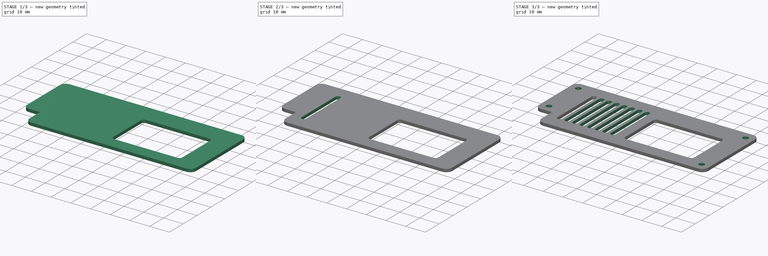
[diagram: build sequence overview — one tinted view per stage of 3, left to right]
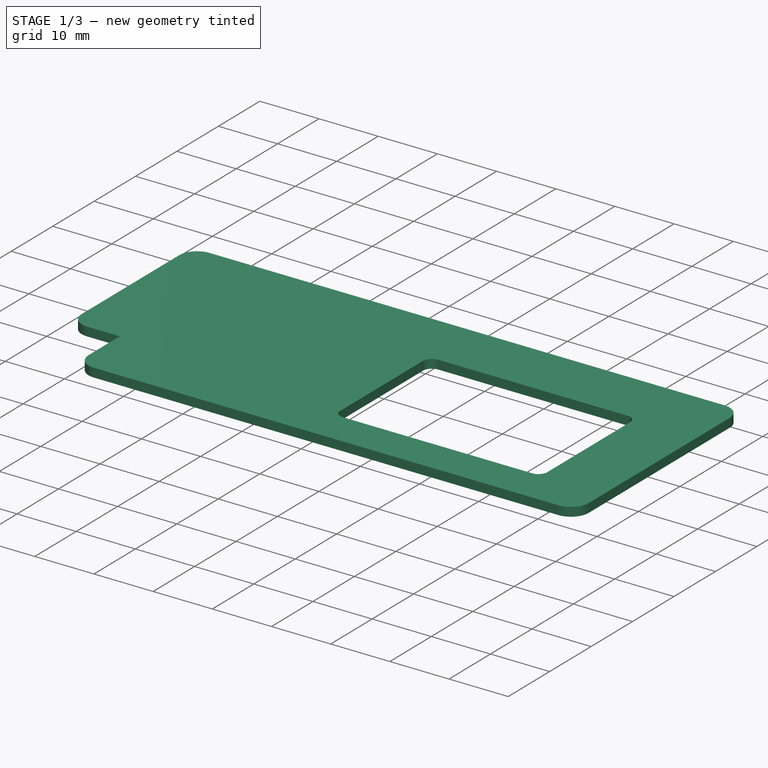
[diagram: stage 1 of 3 — iso view after this stage's code; geometry added in this stage tinted green]
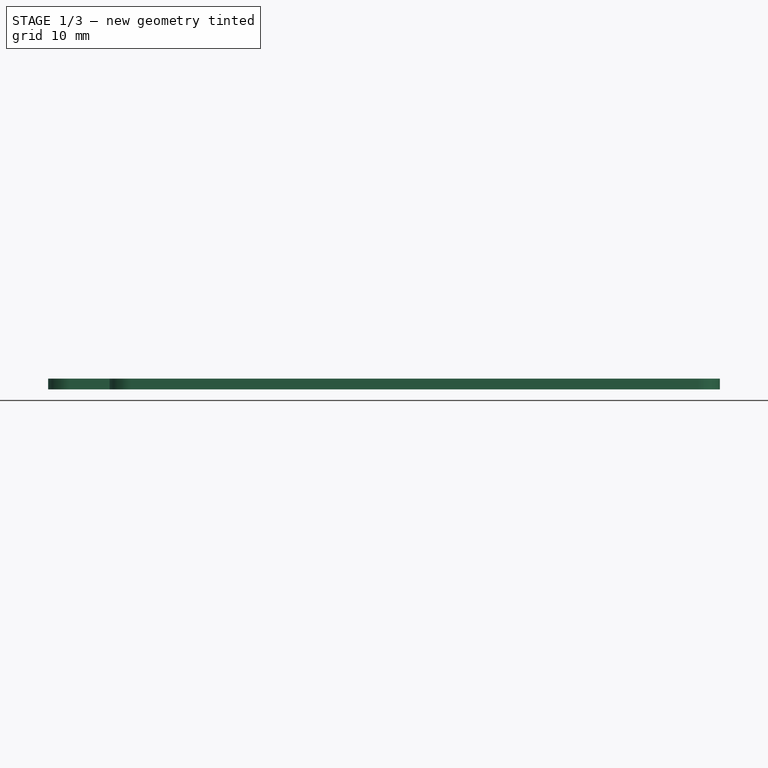
[diagram: stage 1 of 3 — front view after this stage's code; geometry added in this stage tinted green]
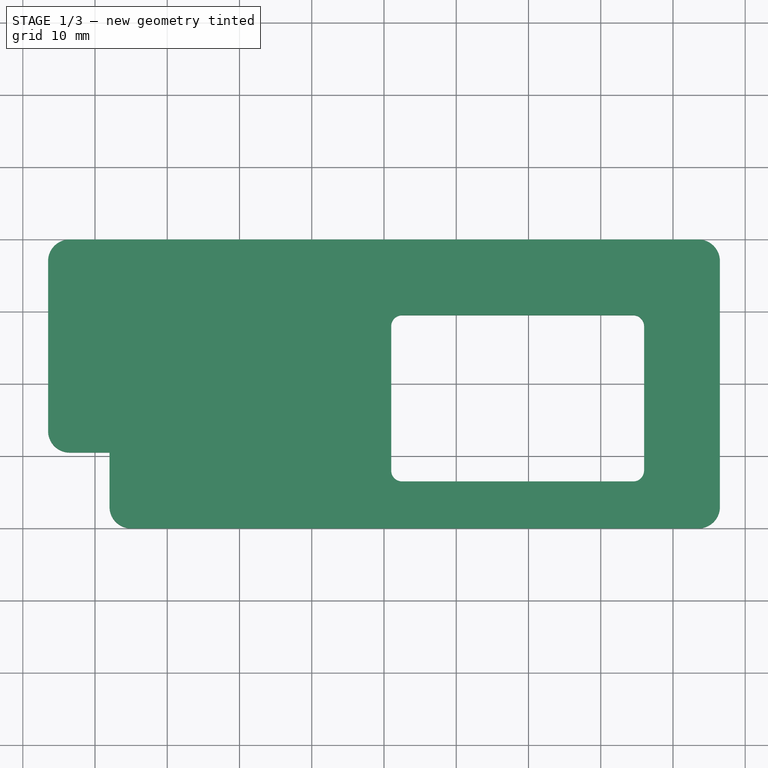
[diagram: stage 1 of 3 — top view after this stage's code; geometry added in this stage tinted green]
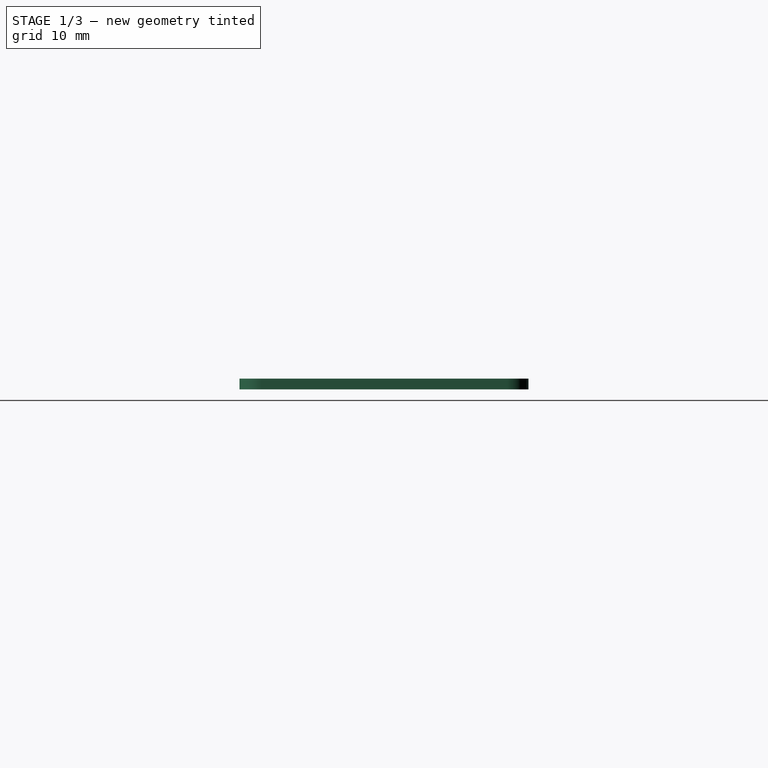
[diagram: stage 1 of 3 — right view after this stage's code; geometry added in this stage tinted green]
FCSTD DOCUMENT  (FreeCAD 0.20R29410 (Git))
Label: Full-Enclosure-TOP
License: All rights reserved
LicenseURL: http://en.wikipedia.org/wiki/All_rights_reserved
objects: Sketcher::SketchObject×4, PartDesign::Pocket×3, PartDesign::Pad×1, PartDesign::LinearPattern×1, PartDesign::Body×1
note: 14 computed .brp shape members not serialized (recipe doc carries the construction recipe); baked Part::Feature solids carry a one-line shape summary decoded from their .brp

FEATURE [Sketcher::SketchObject] Sketch
  FullyConstrained = true
  MapMode = 5
  Support = -> [XY_Plane]
  sketch-geometry (14):
    g0: LineSegment StartX=-43.5 StartY=20 StartZ=0 EndX=43.5 EndY=20 EndZ=0
    g1: LineSegment StartX=46.5 StartY=17 StartZ=0 EndX=46.5 EndY=-17 EndZ=0
    g2: LineSegment StartX=43.5 StartY=-20 StartZ=0 EndX=-35 EndY=-20 EndZ=0
    g3: ArcOfCircle CenterX=-43.5 CenterY=17 CenterZ=0 NormalX=0 NormalY=0 NormalZ=1 AngleXU=0 Radius=3 StartAngle=1.5708 EndAngle=3.14159
    g4: ArcOfCircle CenterX=43.5 CenterY=17 CenterZ=0 NormalX=0 NormalY=0 NormalZ=1 AngleXU=0 Radius=3 StartAngle=3e-16 EndAngle=1.5708
    g5: GeomPoint X=46.5 Y=20 Z=0
    g6: ArcOfCircle CenterX=-35 CenterY=-17 CenterZ=0 NormalX=0 NormalY=0 NormalZ=1 AngleXU=0 Radius=3 StartAngle=3.14159 EndAngle=4.71239
    g7: ArcOfCircle CenterX=43.5 CenterY=-17 CenterZ=0 NormalX=0 NormalY=0 NormalZ=1 AngleXU=0 Radius=3 StartAngle=4.71239 EndAngle=6.28319
    g8: GeomPoint X=46.5 Y=-20 Z=0
    g9: LineSegment StartX=-46.5 StartY=17 StartZ=0 EndX=-46.5 EndY=-6.5 EndZ=0
    g10: LineSegment StartX=-43.5 StartY=-9.5 StartZ=0 EndX=-38 EndY=-9.5 EndZ=0
    g11: LineSegment StartX=-38 StartY=-9.5 StartZ=0 EndX=-38 EndY=-17 EndZ=0
    g12: ArcOfCircle CenterX=-43.5 CenterY=-6.5 CenterZ=0 NormalX=0 NormalY=0 NormalZ=1 AngleXU=0 Radius=3 StartAngle=3.14159 EndAngle=4.71239
    g13: GeomPoint X=-46.5 Y=-9.5 Z=0
  constraints (34):
    c: Horizontal(g0)
    c: Horizontal(g2)
    c: Vertical(g1)
    c: Tangent(g0,g3) = 1.5708
    c: PointOnObject(g5,g0)
    c: PointOnObject(g5,g1)
    c: Tangent(g0,g4) = 1.5708
    c: Tangent(g1,g4) = 1.5708
    c: Tangent(g2,g6) = 1.5708
    c: PointOnObject(g8,g1)
    c: PointOnObject(g8,g2)
    c: Tangent(g1,g7) = 1.5708
    c: Tangent(g2,g7) = 1.5708
    c: Equal(g7,g4)
    c: Equal(g4,g3)
    c: Equal(g3,g6)
    c: Symmetric(g7,g3,g-1)
    c: Tangent(g3,g9) = -1.5708
    c: Coincident(g10,g11)
    c: Coincident(g11,g6)
    c: Horizontal(g3,g3)
    c: Horizontal(g10)
    c: Vertical(g11)
    c: PointOnObject(g13,g9)
    c: PointOnObject(g13,g10)
    c: Tangent(g9,g12) = -1.5708
    c: Tangent(g10,g12) = -1.5708
    c: Equal(g12,g3)
    c: Horizontal(g6,g6)
    c: DistanceY(g2,g0) = 40
    c: DistanceX(g13,g8) = 93
    c: Radius(g6) = 3
    c: DistanceX(g13,g10) = 8.5
    c: DistanceY(g13,g0) = 29.5
FEATURE [PartDesign::Pad] Pad
  Direction = (0,0,1)
  Length = 1.5
  Length2 = 10
  Profile = -> Sketch
  ReferenceAxis = -> Sketch [N_Axis]
  Type = 0
FEATURE [Sketcher::SketchObject] Sketch001
  ExternalGeometry = -> [Pad]
  FullyConstrained = true
  MapMode = 5
  Placement = pos=(0,0,1.5) rot=(0,0,1;0rad)
  Support = -> [Pad]
  sketch-geometry (12):
    g0: LineSegment StartX=2.5 StartY=9.5 StartZ=0 EndX=34.5 EndY=9.5 EndZ=0
    g1: LineSegment StartX=36 StartY=8 StartZ=0 EndX=36 EndY=-12 EndZ=0
    g2: LineSegment StartX=34.5 StartY=-13.5 StartZ=0 EndX=2.5 EndY=-13.5 EndZ=0
    g3: LineSegment StartX=1 StartY=-12 StartZ=0 EndX=1 EndY=8 EndZ=0
    g4: ArcOfCircle CenterX=2.5 CenterY=8 CenterZ=0 NormalX=0 NormalY=0 NormalZ=1 AngleXU=0 Radius=1.5 StartAngle=1.5708 EndAngle=3.14159
    g5: GeomPoint X=1 Y=9.5 Z=0
    g6: ArcOfCircle CenterX=2.5 CenterY=-12 CenterZ=0 NormalX=0 NormalY=0 NormalZ=1 AngleXU=0 Radius=1.5 StartAngle=3.14159 EndAngle=4.71239
    g7: GeomPoint X=1 Y=-13.5 Z=0
    g8: ArcOfCircle CenterX=34.5 CenterY=-12 CenterZ=0 NormalX=0 NormalY=0 NormalZ=1 AngleXU=0 Radius=1.5 StartAngle=4.71239 EndAngle=6.28319
    g9: GeomPoint X=36 Y=-13.5 Z=0
    g10: ArcOfCircle CenterX=34.5 CenterY=8 CenterZ=0 NormalX=0 NormalY=0 NormalZ=1 AngleXU=0 Radius=1.5 StartAngle=0 EndAngle=1.5708
    g11: GeomPoint X=36 Y=9.5 Z=0
  constraints (28):
    c: Horizontal(g0)
    c: Horizontal(g2)
    c: Vertical(g1)
    c: Vertical(g3)
    c: DistanceX(g5,g11) = 35
    c: DistanceY(g9,g11) = 23
    c: PointOnObject(g5,g3)
    c: PointOnObject(g5,g0)
    c: Tangent(g3,g4) = 1.5708
    c: Tangent(g0,g4) = 1.5708
    c: PointOnObject(g7,g3)
    c: PointOnObject(g7,g2)
    c: Tangent(g3,g6) = 1.5708
    c: Tangent(g2,g6) = 1.5708
    c: PointOnObject(g9,g2)
    c: PointOnObject(g9,g1)
    c: Tangent(g2,g8) = 1.5708
    c: Tangent(g1,g8) = 1.5708
    c: PointOnObject(g11,g0)
    c: PointOnObject(g11,g1)
    c: Tangent(g0,g10) = 1.5708
    c: Tangent(g1,g10) = 1.5708
    c: Equal(g4,g10)
    c: Equal(g10,g8)
    c: Equal(g8,g6)
    c: Radius(g6) = 1.5
    c: DistanceX(g1,g-4) = 10.5
    c: DistanceY(g-5,g2) = 6.5
FEATURE [PartDesign::Pocket] Pocket
  BaseFeature = -> Pad
  Direction = (0,0,-1)
  Length = 5
  Length2 = 5
  Profile = -> Sketch001
  ReferenceAxis = -> Sketch001 [N_Axis]
  Type = 0
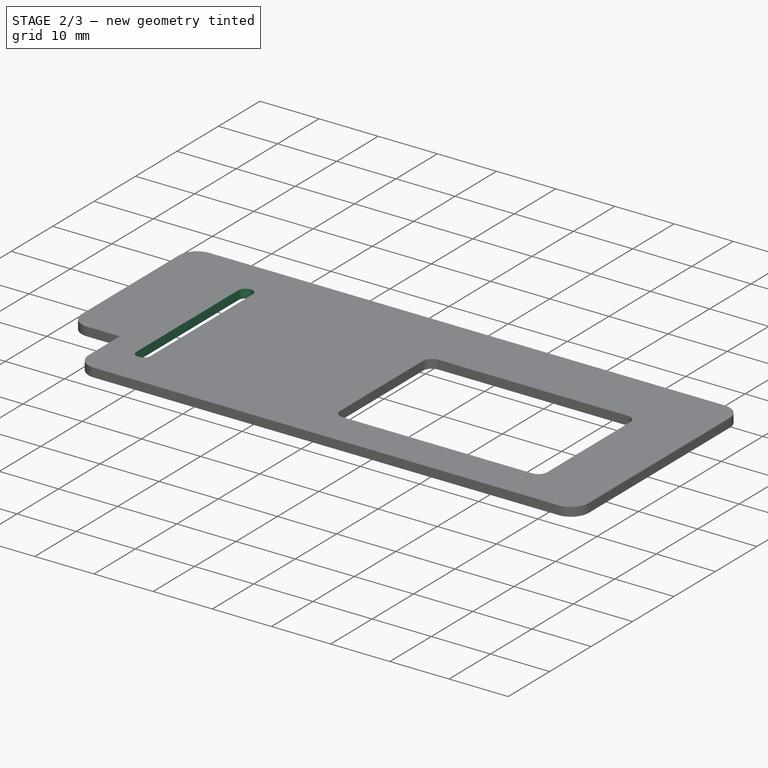
[diagram: stage 2 of 3 — iso view after this stage's code; geometry added in this stage tinted green]
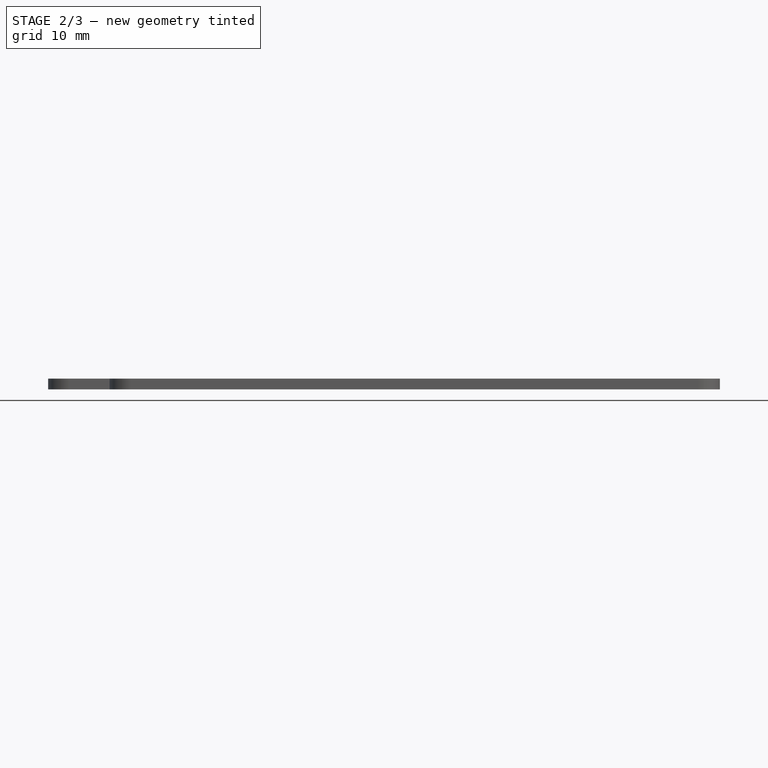
[diagram: stage 2 of 3 — front view after this stage's code; geometry added in this stage tinted green]
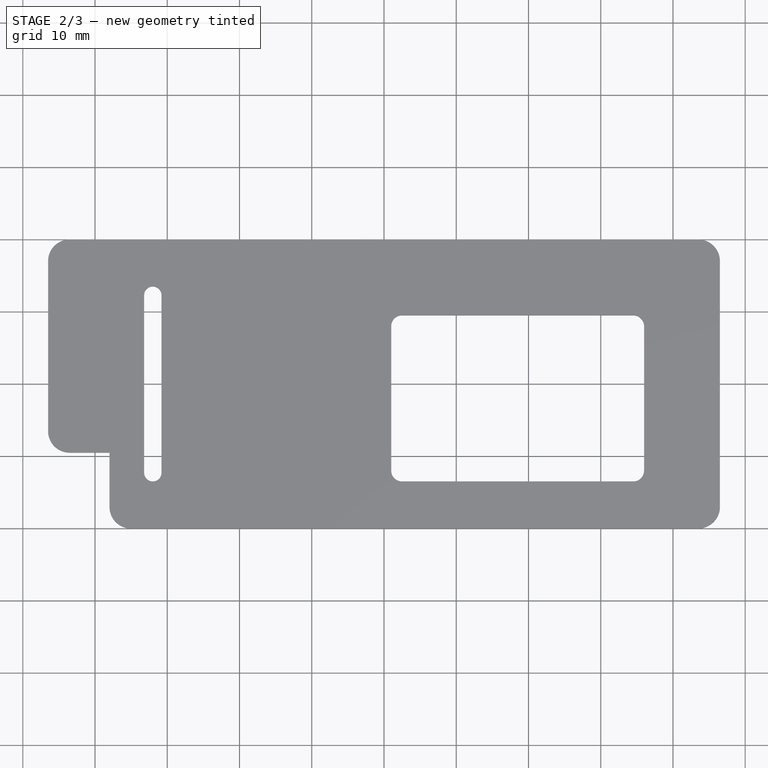
[diagram: stage 2 of 3 — top view after this stage's code; geometry added in this stage tinted green]
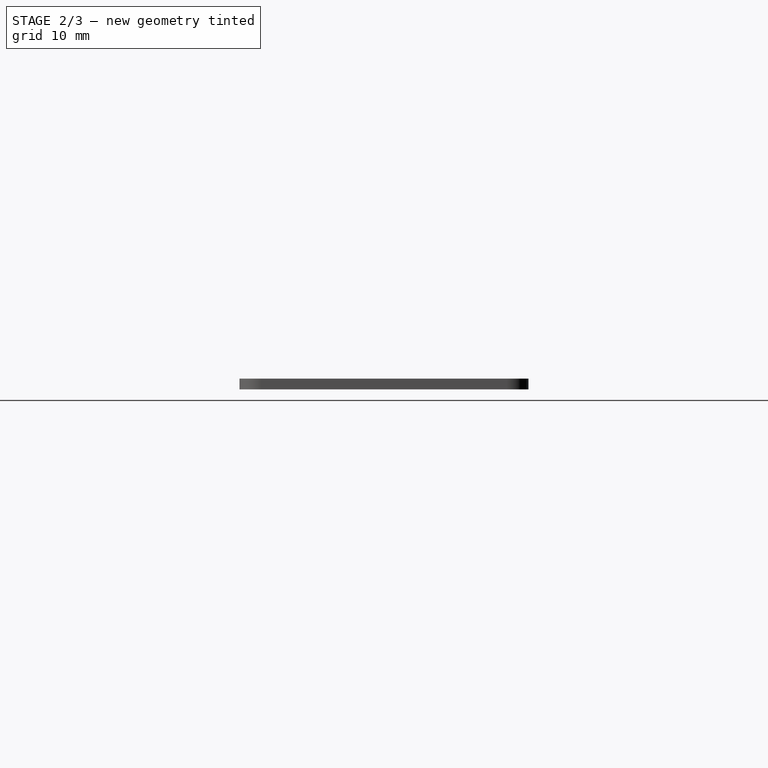
[diagram: stage 2 of 3 — right view after this stage's code; geometry added in this stage tinted green]
FEATURE [Sketcher::SketchObject] Sketch002
  ExternalGeometry = -> [Pocket]
  FullyConstrained = true
  MapMode = 5
  Placement = pos=(0,0,1.5) rot=(0,0,1;0rad)
  Support = -> [Pocket]
  sketch-geometry (5):
    g0: ArcOfCircle CenterX=-32 CenterY=12.3 CenterZ=0 NormalX=0 NormalY=0 NormalZ=1 AngleXU=0 Radius=1.2 StartAngle=1e-16 EndAngle=3.14159
    g1: ArcOfCircle CenterX=-32 CenterY=-12.3 CenterZ=0 NormalX=0 NormalY=0 NormalZ=1 AngleXU=0 Radius=1.2 StartAngle=3.14159 EndAngle=6.28319
    g2: LineSegment StartX=-33.2 StartY=12.3 StartZ=0 EndX=-33.2 EndY=-12.3 EndZ=0
    g3: LineSegment StartX=-30.8 StartY=-12.3 StartZ=0 EndX=-30.8 EndY=12.3 EndZ=0
    g4: GeomPoint X=-32 Y=-13.5 Z=0
  constraints (11):
    c: Tangent(g0,g2) = -1.5708
    c: Tangent(g2,g1) = -1.5708
    c: Tangent(g1,g3) = -1.5708
    c: Tangent(g3,g0) = -1.5708
    c: Equal(g0,g1)
    c: Radius(g0) = 1.2
    c: Symmetric(g0,g1,g-1)
    c: DistanceX(g0,g-1) = 32
    c: PointOnObject(g4,g1)
    c: Vertical(g1,g4)
    c: Horizontal(g4,g-3)
FEATURE [PartDesign::Pocket] Pocket001
  BaseFeature = -> Pocket
  Direction = (0,0,-1)
  Length = 5
  Length2 = 5
  Profile = -> Sketch002
  ReferenceAxis = -> Sketch002 [N_Axis]
  Type = 0
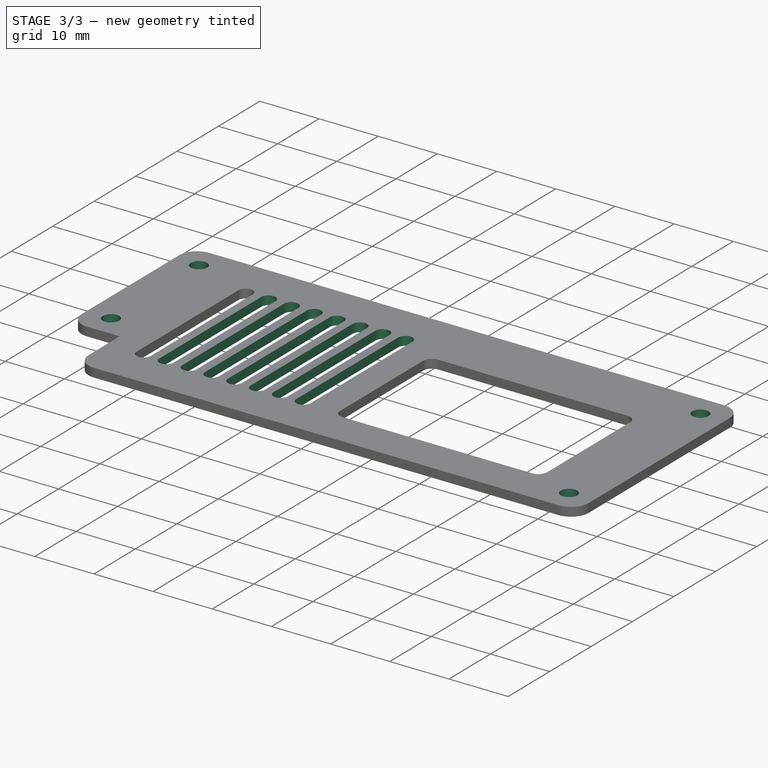
[diagram: stage 3 of 3 — iso view after this stage's code; geometry added in this stage tinted green]
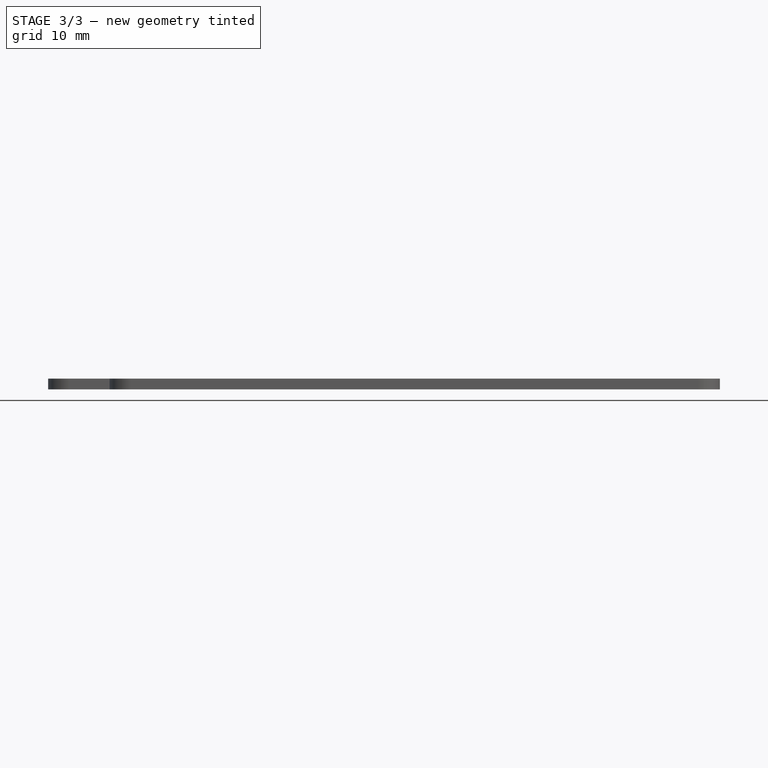
[diagram: stage 3 of 3 — front view after this stage's code; geometry added in this stage tinted green]
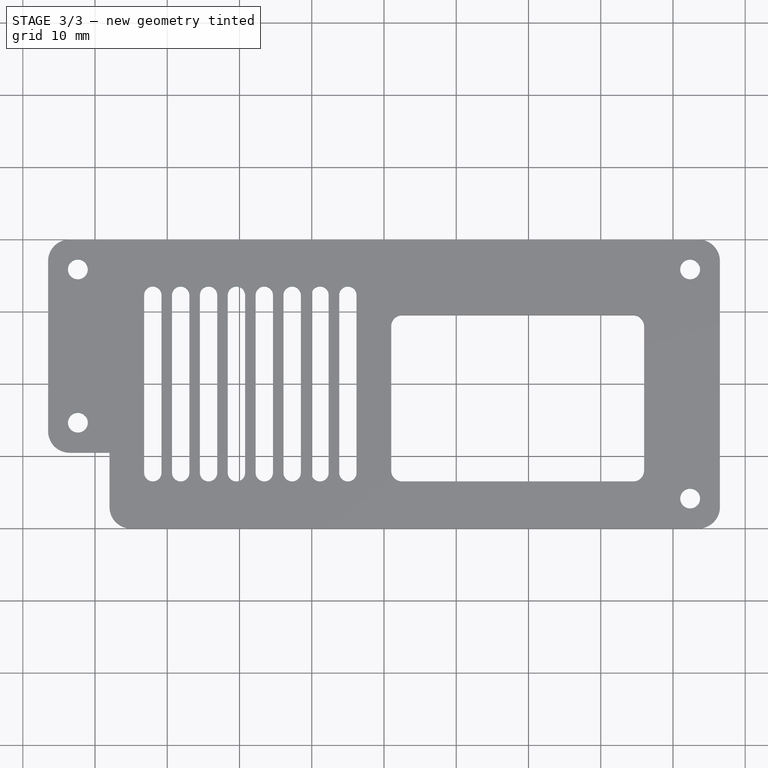
[diagram: stage 3 of 3 — top view after this stage's code; geometry added in this stage tinted green]
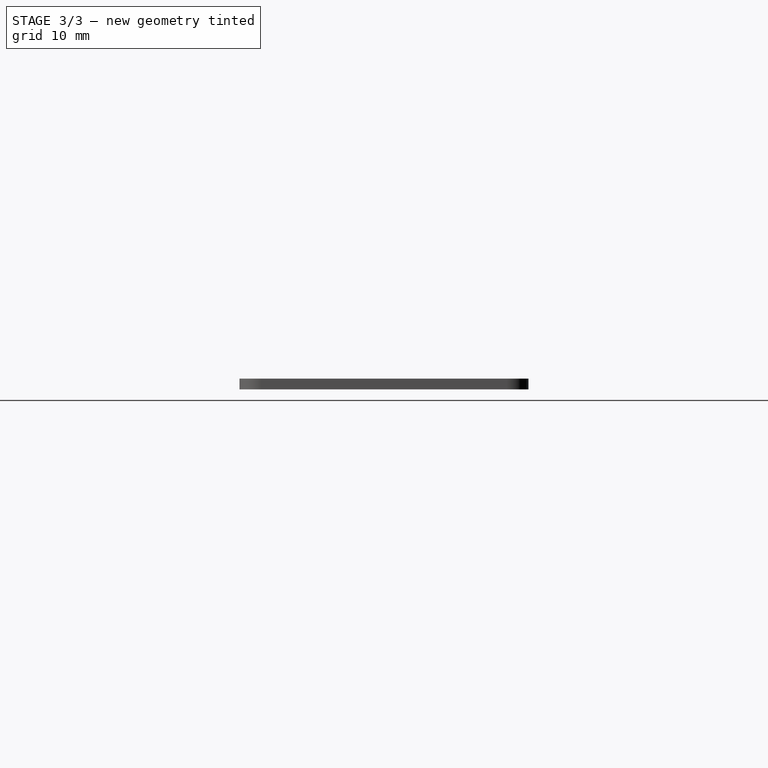
[diagram: stage 3 of 3 — right view after this stage's code; geometry added in this stage tinted green]
FEATURE [PartDesign::LinearPattern] LinearPattern
  BaseFeature = -> Pocket001
  Direction = -> Sketch002 [H_Axis]
  Length = 27
  Occurrences = 8
  Originals = -> [Pocket001]
FEATURE [Sketcher::SketchObject] Sketch003
  FullyConstrained = true
  MapMode = 5
  Placement = pos=(0,0,1.5) rot=(0,0,1;0rad)
  Support = -> [LinearPattern]
  sketch-geometry (4):
    g0: Circle CenterX=42.375 CenterY=15.86 CenterZ=0 NormalX=0 NormalY=0 NormalZ=1 AngleXU=0 Radius=1.375
    g1: Circle CenterX=-42.375 CenterY=15.86 CenterZ=0 NormalX=0 NormalY=0 NormalZ=1 AngleXU=0 Radius=1.375
    g2: Circle CenterX=42.375 CenterY=-15.86 CenterZ=0 NormalX=0 NormalY=0 NormalZ=1 AngleXU=0 Radius=1.375
    g3: Circle CenterX=-42.375 CenterY=-5.36 CenterZ=0 NormalX=0 NormalY=0 NormalZ=1 AngleXU=0 Radius=1.375
  constraints (10):
    c: Equal(g3,g2)
    c: Equal(g2,g0)
    c: Equal(g0,g1)
    c: Symmetric(g1,g0,g-2)
    c: Symmetric(g2,g0,g-1)
    c: Vertical(g3,g1)
    c: DistanceY(g2,g0) = 31.72
    c: DistanceX(g1,g0) = 84.75
    c: DistanceY(g3,g1) = 21.22
    c: Diameter(g0) = 2.75
FEATURE [PartDesign::Pocket] Pocket002
  BaseFeature = -> LinearPattern
  Direction = (0,0,-1)
  Length = 5
  Length2 = 5
  Profile = -> Sketch003
  ReferenceAxis = -> Sketch003 [N_Axis]
  Type = 0
FEATURE [PartDesign::Body] Body
  Group = -> [Sketch,Pad,Sketch001,Pocket,Sketch002,Pocket001,LinearPattern,Sketch003,Pocket002]
  Origin = -> Origin
  Tip = -> Pocket002
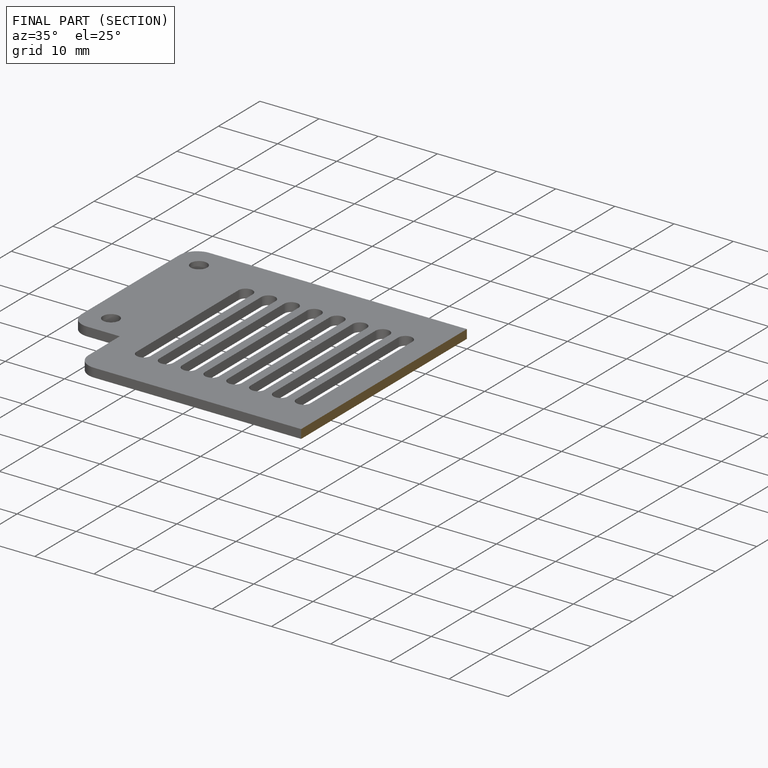
[diagram: finished part — half-section view (interior)]
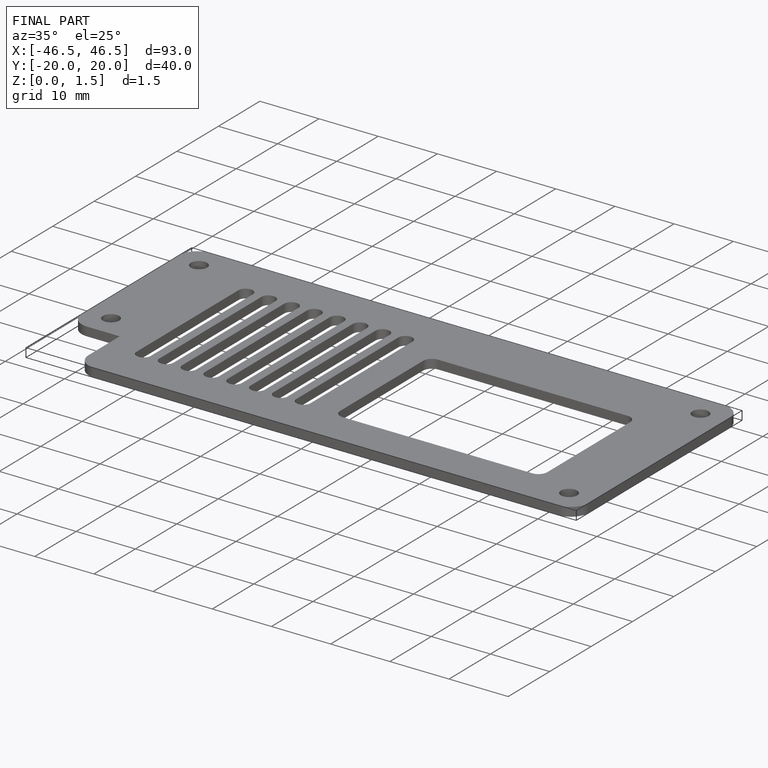
[diagram: finished part — iso view with bounding-box wireframe]
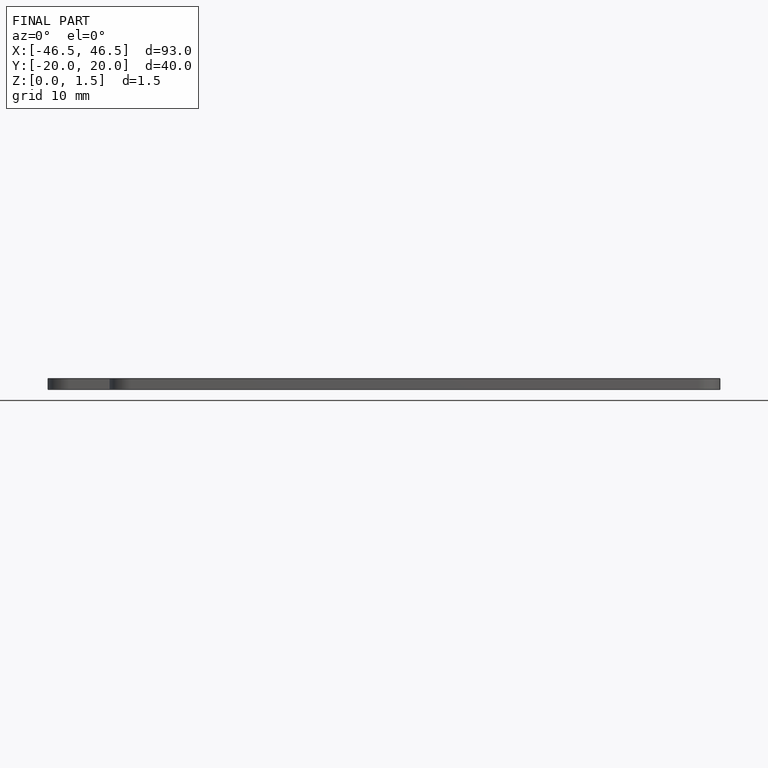
[diagram: finished part — front view with bounding-box wireframe]
